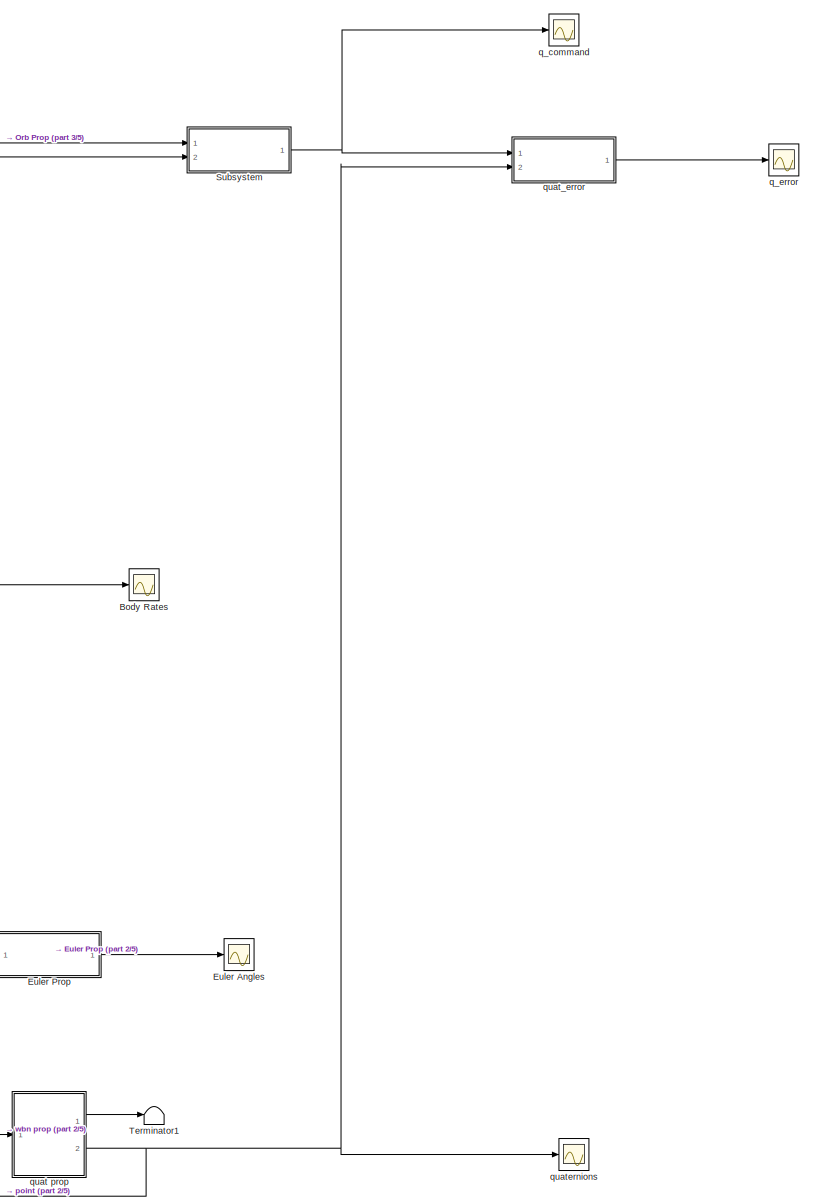
[diagram: root canvas - part 1/5, right side, full height]
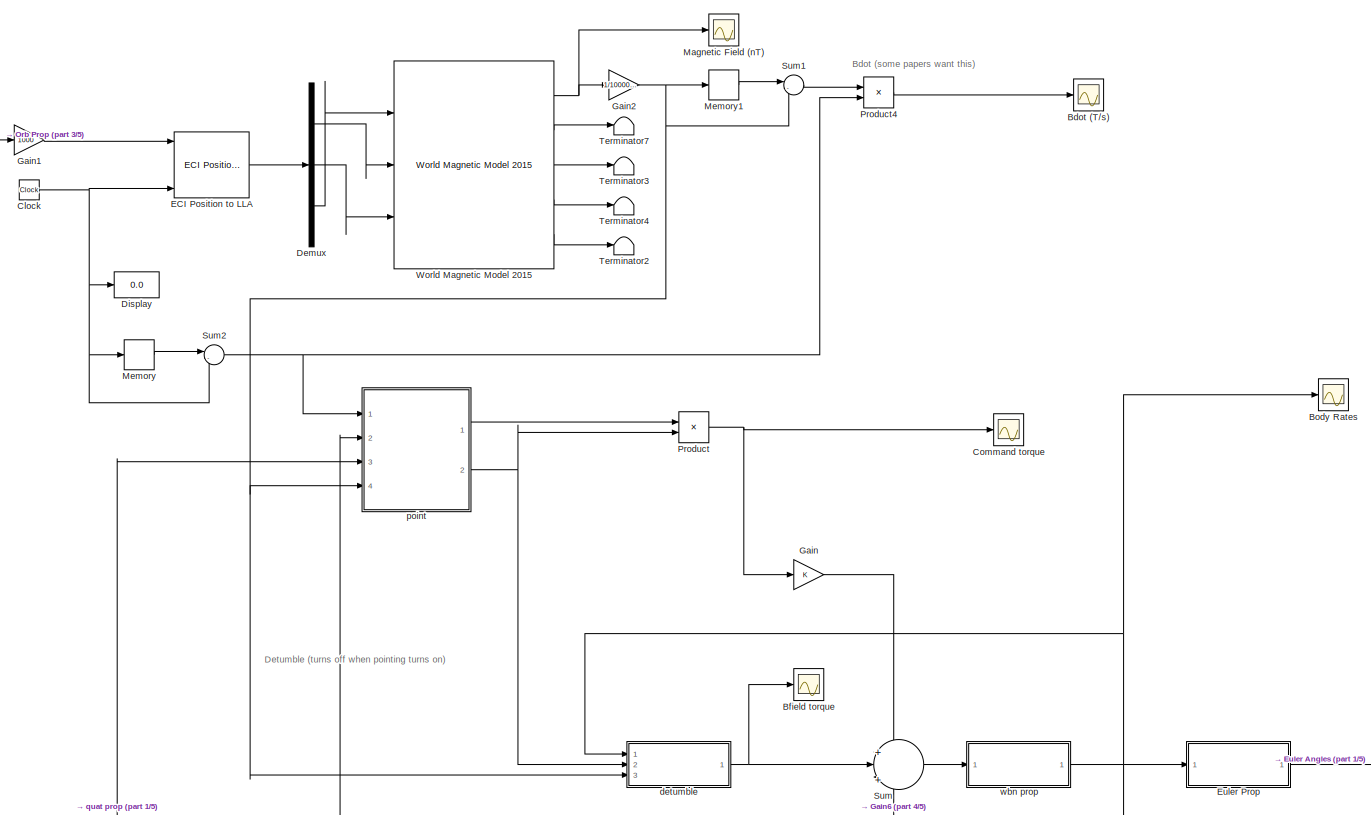
[diagram: root canvas - part 2/5, central region]
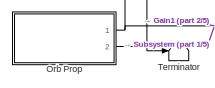
[diagram: root canvas - part 3/5, top left region]
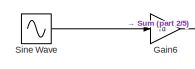
[diagram: root canvas - part 4/5, bottom center region]
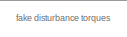
[diagram: root canvas - part 5/5, bottom center region]
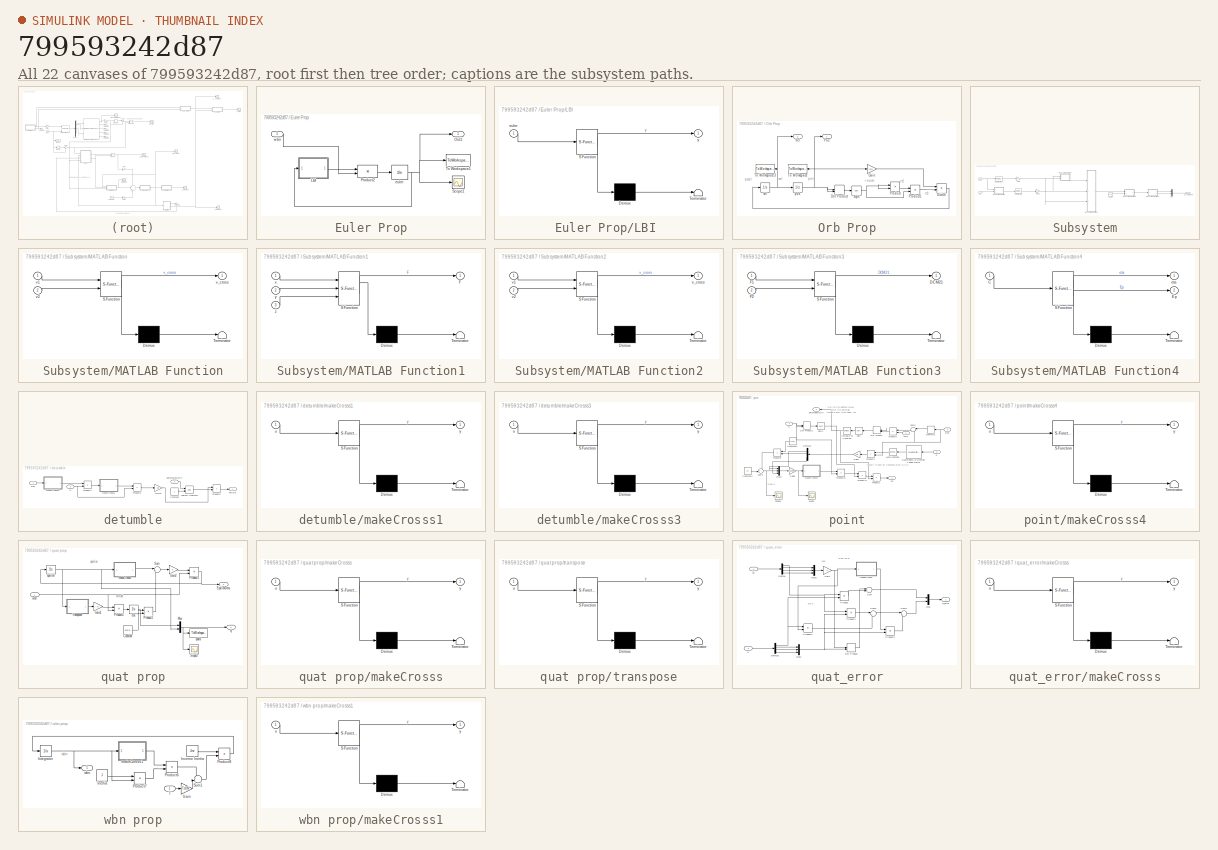
[diagram: thumbnail index - all 22 canvases of the model, root first then tree order]
MODEL slx_799593242d87
KIND model
CONFIG AbsTol = auto
CONFIG FixedStep = auto
CONFIG MaxStep = auto
CONFIG MinStep = auto
CONFIG RelTol = 1e-3
CONFIG SampleTimeConstraint = Unconstrained
CONFIG Solver = ode45
CONFIG SolverMode = Auto
CONFIG SolverName = ode45
CONFIG StartTime = 0.01
CONFIG StopTime = tprop
BLOCK [Scope] Bdot (T//s)
  Floating = off
  LimitDataPoints = off
  NumInputPorts = 1
  Ports = [1]
  SaveName = Bdot
  SaveToWorkspace = on
  ShowLegends = on
  YMax = 0.0045
  YMin = -0.002
BLOCK [Scope] Bfield torque
  Floating = off
  LimitDataPoints = off
  NumInputPorts = 1
  Ports = [1]
  SaveName = BfieldTorq
  SaveToWorkspace = on
  YMax = 0.000058
  YMin = -0.000028
BLOCK [Scope] Body Rates
  Floating = off
  LimitDataPoints = off
  NumInputPorts = 1
  Ports = [1]
  SaveName = wbn_sim
  SaveToWorkspace = on
  YMax = 8e+07
  YMin = -6e+07
  ZoomMode = xonly
BLOCK [Clock] Clock
BLOCK [Scope] Command torque
  DataFormat = StructureWithTime
  Floating = off
  LimitDataPoints = off
  NumInputPorts = 1
  Ports = [1]
  SampleInput = on
  SaveName = ScopeData1
  YMax = 8e+07
  YMin = -6e+07
BLOCK [Demux] Demux
  DisplayOption = bar
  Outputs = 3
  Ports = [1, 3]
BLOCK [Display] Display
  Decimation = 1
  Ports = [1]
BLOCK [Reference] ECI Position to LLA  REF=aerolibtransform2/ECI Position to LLA
  AttributesFormatString = %<red>
  Ports = [6, 1]
  SourceBlock = aerolibtransform2/ECI Position to LLA
  SourceType = ECItoLLA
  day = 2
  deltaT = Sec
  earthmodel = WGS84
  eqradius = 6378137
  errorflag = Error
  eunits = Metric (MKS)
  extraparamflag = on
  flat = 1/298.257223563
  hour = 0
  min = 0
  month = December
  red = IAU-2000/2006
  sec = 0
  year = 2015
BLOCK [Scope] Euler Angles
  Floating = off
  LegendLocations = 0.90106     0.89277    0.076098    0.060024
  LimitDataPoints = off
  NumInputPorts = 1
  Ports = [1]
  SaveName = Euler
  SaveToWorkspace = on
  ShowLegends = on
  YMax = 20.09042
  YMin = -79.20821
BLOCK [SubSystem] Euler Prop
  Ports = [1, 1]
  RequestExecContextInheritance = off
  TreatAsAtomicUnit = on
BLOCK [SubSystem] Euler Prop/LBI 
  ErrorFcn = Stateflow.Translate.translate
  PermitHierarchicalResolution = ExplicitOnly
  Ports = [1, 1]
  RequestExecContextInheritance = off
  SFBlockType = MATLAB Function
  TreatAsAtomicUnit = on
BLOCK [Demux] Euler Prop/LBI / Demux 
  Outputs = 1
  Ports = [1, 1]
BLOCK [S-Function] Euler Prop/LBI / SFunction 
  EnableBusSupport = on
  FunctionName = sf_sfun
  PortCounts = [1 2]
  Ports = [1, 2]
  Tag = Stateflow S-Function BDot42015a 9
BLOCK [Terminator] Euler Prop/LBI / Terminator 
BLOCK [Inport] Euler Prop/LBI /euler
  IconDisplay = Port number
BLOCK [Outport] Euler Prop/LBI /y
  IconDisplay = Port number
BLOCK [Outport] Euler Prop/Out1
  IconDisplay = Port number
BLOCK [Product] Euler Prop/Product2
  InputSameDT = off
  Multiplication = Matrix(*)
  OutDataTypeStr = Inherit: Inherit via internal rule
  Ports = [2, 1]
  RndMeth = Floor
  SaturateOnIntegerOverflow = off
BLOCK [Scope] Euler Prop/Scope1
  Floating = off
  NumInputPorts = 1
  Ports = [1]
  SaveName = ScopeData5
  YMax = 10
  YMin = -10
BLOCK [ToWorkspace] Euler Prop/To Workspace1
  FixptAsFi = on
  MaxDataPoints = inf
  Ports = [1]
  SampleTime = -1
  Save2DSignal = 3-D array (concatenate along third dimension)
  SaveFormat = Timeseries
  VariableName = euler
BLOCK [Integrator] Euler Prop/euler
  InitialCondition = euler0
  Ports = [1, 1]
BLOCK [Inport] Euler Prop/wbn
  IconDisplay = Port number
BLOCK [Gain] Gain
  OutDataTypeStr = Inherit: Inherit via internal rule
  ParamDataTypeStr = Inherit: Inherit via internal rule
  SaturateOnIntegerOverflow = off
BLOCK [Gain] Gain1
  Gain = 1000
  OutDataTypeStr = Inherit: Inherit via internal rule
  ParamDataTypeStr = Inherit: Inherit via internal rule
  SaturateOnIntegerOverflow = off
BLOCK [Gain] Gain2
  Gain = 1/1000000000
  OutDataTypeStr = Inherit: Inherit via internal rule
  ParamDataTypeStr = Inherit: Inherit via internal rule
  SaturateOnIntegerOverflow = off
BLOCK [Gain] Gain6
  Gain = Td
  OutDataTypeStr = Inherit: Inherit via internal rule
  ParamDataTypeStr = Inherit: Inherit via internal rule
  SaturateOnIntegerOverflow = off
BLOCK [Scope] Magnetic Field (nT)
  Floating = off
  LimitDataPoints = off
  NumInputPorts = 1
  Ports = [1]
  SaveName = MagField
  SaveToWorkspace = on
  ShowLegends = on
  YMax = 40000
  YMin = -30000
BLOCK [Memory] Memory
  InheritSampleTime = on
  X0 = .0999999
BLOCK [Memory] Memory1
  InheritSampleTime = on
  X0 = [2.1e-9;-5.8e-9;1e-9]
BLOCK [SubSystem] Orb Prop
  Ports = [0, 2]
  RequestExecContextInheritance = off
BLOCK [Product] Orb Prop/Divide
  InputSameDT = off
  Inputs = */
  OutDataTypeStr = Inherit: Inherit via internal rule
  Ports = [2, 1]
  RndMeth = Floor
  SaturateOnIntegerOverflow = off
BLOCK [DotProduct] Orb Prop/Dot Product
  OutDataTypeStr = Inherit: Inherit via internal rule
BLOCK [Gain] Orb Prop/Gain
  Gain = -mu
  OutDataTypeStr = Inherit: Inherit via internal rule
  ParamDataTypeStr = Inherit: Inherit via internal rule
  SaturateOnIntegerOverflow = off
BLOCK [Outport] Orb Prop/Pos
  IconDisplay = Port number
BLOCK [Product] Orb Prop/Product
  InputSameDT = off
  OutDataTypeStr = Inherit: Inherit via internal rule
  Ports = [2, 1]
  RndMeth = Floor
  SaturateOnIntegerOverflow = off
BLOCK [Product] Orb Prop/Product1
  InputSameDT = off
  OutDataTypeStr = Inherit: Inherit via internal rule
  Ports = [2, 1]
  RndMeth = Floor
  SaturateOnIntegerOverflow = off
BLOCK [Sqrt] Orb Prop/Sqrt
BLOCK [ToWorkspace] Orb Prop/To Workspace
  FixptAsFi = on
  MaxDataPoints = inf
  Ports = [1]
  SampleTime = -1
  Save2DSignal = 3-D array (concatenate along third dimension)
  SaveFormat = Timeseries
  VariableName = pos
BLOCK [ToWorkspace] Orb Prop/To Workspace3
  FixptAsFi = on
  MaxDataPoints = inf
  Ports = [1]
  SampleTime = -1
  Save2DSignal = 3-D array (concatenate along third dimension)
  SaveFormat = Timeseries
  VariableName = vel
BLOCK [Outport] Orb Prop/Vel
  IconDisplay = Port number
  Port = 2
BLOCK [Integrator] Orb Prop/pos
  InitialCondition = rvect
  Ports = [1, 1]
BLOCK [Integrator] Orb Prop/vel
  InitialCondition = vvect
  Ports = [1, 1]
BLOCK [Product] Product
  InputSameDT = off
  OutDataTypeStr = Inherit: Inherit via internal rule
  Ports = [2, 1]
  RndMeth = Floor
  SaturateOnIntegerOverflow = off
BLOCK [Product] Product4
  InputSameDT = off
  Inputs = */
  OutDataTypeStr = Inherit: Inherit via internal rule
  Ports = [2, 1]
  RndMeth = Floor
  SaturateOnIntegerOverflow = off
BLOCK [Sin] Sine Wave
  Amplitude = 1e-8
  Frequency = 100/T
  Ports = [0, 1]
  SampleTime = 0
BLOCK [SubSystem] Subsystem
  Ports = [2, 1]
  RequestExecContextInheritance = off
BLOCK [Gain] Subsystem/Gain
  Gain = -1
  OutDataTypeStr = Inherit: Inherit via internal rule
  ParamDataTypeStr = Inherit: Inherit via internal rule
  SaturateOnIntegerOverflow = off
BLOCK [Gain] Subsystem/Gain1
  Gain = -1
  OutDataTypeStr = Inherit: Inherit via internal rule
  ParamDataTypeStr = Inherit: Inherit via internal rule
  SaturateOnIntegerOverflow = off
BLOCK [Constant] Subsystem/Identity
  Value = [1 0 0; 0 1 0; 0 0 1]
  VectorParams1D = off
BLOCK [SubSystem] Subsystem/MATLAB Function
  ErrorFcn = Stateflow.Translate.translate
  PermitHierarchicalResolution = ExplicitOnly
  Ports = [2, 1]
  RequestExecContextInheritance = off
  SFBlockType = MATLAB Function
  TreatAsAtomicUnit = on
BLOCK [Demux] Subsystem/MATLAB Function/ Demux 
  Outputs = 1
  Ports = [1, 1]
BLOCK [S-Function] Subsystem/MATLAB Function/ SFunction 
  EnableBusSupport = on
  FunctionName = sf_sfun
  PortCounts = [2 2]
  Ports = [2, 2]
  Tag = Stateflow S-Function BDot42015a 5
BLOCK [Terminator] Subsystem/MATLAB Function/ Terminator 
BLOCK [Inport] Subsystem/MATLAB Function/v1
  IconDisplay = Port number
BLOCK [Inport] Subsystem/MATLAB Function/v2
  IconDisplay = Port number
  Port = 2
BLOCK [Outport] Subsystem/MATLAB Function/v_cross
  IconDisplay = Port number
BLOCK [SubSystem] Subsystem/MATLAB Function1
  ErrorFcn = Stateflow.Translate.translate
  PermitHierarchicalResolution = ExplicitOnly
  Ports = [3, 1]
  RequestExecContextInheritance = off
  SFBlockType = MATLAB Function
  TreatAsAtomicUnit = on
BLOCK [Demux] Subsystem/MATLAB Function1/ Demux 
  Outputs = 1
  Ports = [1, 1]
BLOCK [S-Function] Subsystem/MATLAB Function1/ SFunction 
  EnableBusSupport = on
  FunctionName = sf_sfun
  PortCounts = [3 2]
  Ports = [3, 2]
  Tag = Stateflow S-Function BDot42015a 10
BLOCK [Terminator] Subsystem/MATLAB Function1/ Terminator 
BLOCK [Outport] Subsystem/MATLAB Function1/F
  IconDisplay = Port number
BLOCK [Inport] Subsystem/MATLAB Function1/x
  IconDisplay = Port number
BLOCK [Inport] Subsystem/MATLAB Function1/y
  IconDisplay = Port number
  Port = 2
BLOCK [Inport] Subsystem/MATLAB Function1/z
  IconDisplay = Port number
  Port = 3
BLOCK [SubSystem] Subsystem/MATLAB Function2
  ErrorFcn = Stateflow.Translate.translate
  PermitHierarchicalResolution = ExplicitOnly
  Ports = [2, 1]
  RequestExecContextInheritance = off
  SFBlockType = MATLAB Function
  TreatAsAtomicUnit = on
BLOCK [Demux] Subsystem/MATLAB Function2/ Demux 
  Outputs = 1
  Ports = [1, 1]
BLOCK [S-Function] Subsystem/MATLAB Function2/ SFunction 
  EnableBusSupport = on
  FunctionName = sf_sfun
  PortCounts = [2 2]
  Ports = [2, 2]
  Tag = Stateflow S-Function BDot42015a 11
BLOCK [Terminator] Subsystem/MATLAB Function2/ Terminator 
BLOCK [Inport] Subsystem/MATLAB Function2/v1
  IconDisplay = Port number
BLOCK [Inport] Subsystem/MATLAB Function2/v2
  IconDisplay = Port number
  Port = 2
BLOCK [Outport] Subsystem/MATLAB Function2/v_cross
  IconDisplay = Port number
BLOCK [SubSystem] Subsystem/MATLAB Function3
  ErrorFcn = Stateflow.Translate.translate
  PermitHierarchicalResolution = ExplicitOnly
  Ports = [2, 1]
  RequestExecContextInheritance = off
  SFBlockType = MATLAB Function
  TreatAsAtomicUnit = on
BLOCK [Demux] Subsystem/MATLAB Function3/ Demux 
  Outputs = 1
  Ports = [1, 1]
BLOCK [S-Function] Subsystem/MATLAB Function3/ SFunction 
  EnableBusSupport = on
  FunctionName = sf_sfun
  PortCounts = [2 2]
  Ports = [2, 2]
  Tag = Stateflow S-Function BDot42015a 12
BLOCK [Terminator] Subsystem/MATLAB Function3/ Terminator 
BLOCK [Outport] Subsystem/MATLAB Function3/DCM21
  IconDisplay = Port number
BLOCK [Inport] Subsystem/MATLAB Function3/F1
  IconDisplay = Port number
BLOCK [Inport] Subsystem/MATLAB Function3/F2
  IconDisplay = Port number
  Port = 2
BLOCK [SubSystem] Subsystem/MATLAB Function4
  ErrorFcn = Stateflow.Translate.translate
  PermitHierarchicalResolution = ExplicitOnly
  Ports = [1, 2]
  RequestExecContextInheritance = off
  SFBlockType = MATLAB Function
  TreatAsAtomicUnit = on
BLOCK [Demux] Subsystem/MATLAB Function4/ Demux 
  Outputs = 1
  Ports = [1, 1]
BLOCK [S-Function] Subsystem/MATLAB Function4/ SFunction 
  EnableBusSupport = on
  FunctionName = sf_sfun
  PortCounts = [1 3]
  Ports = [1, 3]
  Tag = Stateflow S-Function BDot42015a 13
BLOCK [Terminator] Subsystem/MATLAB Function4/ Terminator 
BLOCK [Inport] Subsystem/MATLAB Function4/C
  IconDisplay = Port number
BLOCK [Outport] Subsystem/MATLAB Function4/Ep
  IconDisplay = Port number
  Port = 2
BLOCK [Outport] Subsystem/MATLAB Function4/eta
  IconDisplay = Port number
BLOCK [Mux] Subsystem/Mux
  DisplayOption = bar
  Inputs = 2
  Ports = [2, 1]
BLOCK [Reference] Subsystem/Normalization  REF=dspmathops/Normalization
  Bias = 1e-10
  ColComp = off
  Dimension = 1
  LockScale = off
  NormOver = Each column
  NormType = 2-norm
  Ports = [1, 1]
  SourceBlock = dspmathops/Normalization
  SourceType = Normalization
  accumDataTypeStr = Inherit: Same as product output
  accumFracLength = 30
  accumLastDataTypeStr = Inherit: Same as product output
  accumMode = Same as product output
  accumWordLength = 32
  additionalParams = off
  allowOverrides = on
  outputDataTypeStr = Inherit: Same as product output
  outputFracLength = 32
  outputLastDataTypeStr = Inherit: Same as product output
  outputMax = []
  outputMin = []
  outputMode = Same as product output
  outputWordLength = 32
  overflowMode = off
  prodOutputDataTypeStr = Inherit: Same as input
  prodOutputFracLength = 32
  prodOutputLastDataTypeStr = Inherit: Same as input
  prodOutputMode = Same as input
  prodOutputWordLength = 32
  roundingMode = Floor
BLOCK [Reference] Subsystem/Normalization1  REF=dspmathops/Normalization
  Bias = 1e-10
  ColComp = off
  Dimension = 1
  LockScale = off
  NormOver = Each column
  NormType = 2-norm
  Ports = [1, 1]
  SourceBlock = dspmathops/Normalization
  SourceType = Normalization
  accumDataTypeStr = Inherit: Same as product output
  accumFracLength = 30
  accumLastDataTypeStr = Inherit: Same as product output
  accumMode = Same as product output
  accumWordLength = 32
  additionalParams = off
  allowOverrides = on
  outputDataTypeStr = Inherit: Same as product output
  outputFracLength = 32
  outputLastDataTypeStr = Inherit: Same as product output
  outputMax = []
  outputMin = []
  outputMode = Same as product output
  outputWordLength = 32
  overflowMode = off
  prodOutputDataTypeStr = Inherit: Same as input
  prodOutputFracLength = 32
  prodOutputLastDataTypeStr = Inherit: Same as input
  prodOutputMode = Same as input
  prodOutputWordLength = 32
  roundingMode = Floor
BLOCK [Inport] Subsystem/Pos
  IconDisplay = Port number
BLOCK [Inport] Subsystem/Vel
  IconDisplay = Port number
  Port = 2
BLOCK [Outport] Subsystem/q_command
  IconDisplay = Port number
BLOCK [Sum] Sum
  IconShape = round
  InputSameDT = off
  Inputs = +||+||+
  OutDataTypeStr = Inherit: Inherit via internal rule
  Ports = [3, 1]
  SaturateOnIntegerOverflow = off
BLOCK [Sum] Sum1
  IconShape = round
  InputSameDT = off
  Inputs = |-+
  OutDataTypeStr = Inherit: Inherit via internal rule
  Ports = [2, 1]
  SaturateOnIntegerOverflow = off
BLOCK [Sum] Sum2
  IconShape = round
  InputSameDT = off
  Inputs = |-+
  OutDataTypeStr = Inherit: Inherit via internal rule
  Ports = [2, 1]
  SaturateOnIntegerOverflow = off
BLOCK [Terminator] Terminator
BLOCK [Terminator] Terminator1
BLOCK [Terminator] Terminator2
BLOCK [Terminator] Terminator3
BLOCK [Terminator] Terminator4
BLOCK [Terminator] Terminator7
BLOCK [Reference] World Magnetic Model 2015  REF=aerolibgravity2/World Magnetic Model 2015
  Ports = [3, 5]
  SourceBlock = aerolibgravity2/World Magnetic Model 2015
  SourceType = WorldMagneticModel2015
  action = Error
  day = 2
  dec_out = on
  h_out = on
  inc_out = on
  month = December
  ti_out = on
  time_in = off
  units = Metric (MKS)
  year = 2015
BLOCK [SubSystem] detumble
  Ports = [3, 1]
  RequestExecContextInheritance = off
BLOCK [Constant] detumble/Constant
BLOCK [Gain] detumble/Gain3
  Gain = -kd
  Multiplication = Matrix(K*u)
  OutDataTypeStr = Inherit: Inherit via internal rule
  ParamDataTypeStr = Inherit: Inherit via internal rule
  SaturateOnIntegerOverflow = off
BLOCK [Logic] detumble/Logical Operator
  AllPortsSameDT = off
  Operator = XOR
  OutDataTypeStr = boolean
  Ports = [2, 1]
BLOCK [Product] detumble/Product1
  InputSameDT = off
  Multiplication = Matrix(*)
  OutDataTypeStr = Inherit: Inherit via internal rule
  Ports = [2, 1]
  RndMeth = Floor
  SaturateOnIntegerOverflow = off
BLOCK [Product] detumble/Product2
  InputSameDT = off
  Multiplication = Matrix(*)
  OutDataTypeStr = Inherit: Inherit via internal rule
  Ports = [2, 1]
  RndMeth = Floor
  SaturateOnIntegerOverflow = off
BLOCK [Product] detumble/Product6
  InputSameDT = off
  OutDataTypeStr = Inherit: Inherit via internal rule
  Ports = [2, 1]
  RndMeth = Floor
  SaturateOnIntegerOverflow = off
BLOCK [Outport] detumble/Tbfield
  IconDisplay = Port number
BLOCK [Inport] detumble/b
  IconDisplay = Port number
  Port = 3
BLOCK [Inport] detumble/detumbleOnOff
  IconDisplay = Port number
  Port = 2
BLOCK [SubSystem] detumble/makeCrosss1
  ErrorFcn = Stateflow.Translate.translate
  PermitHierarchicalResolution = ExplicitOnly
  Ports = [1, 1]
  RequestExecContextInheritance = off
  SFBlockType = MATLAB Function
  TreatAsAtomicUnit = on
BLOCK [Demux] detumble/makeCrosss1/ Demux 
  Outputs = 1
  Ports = [1, 1]
BLOCK [S-Function] detumble/makeCrosss1/ SFunction 
  EnableBusSupport = on
  FunctionName = sf_sfun
  PortCounts = [1 2]
  Ports = [1, 2]
  Tag = Stateflow S-Function BDot42015a 1
BLOCK [Terminator] detumble/makeCrosss1/ Terminator 
BLOCK [Inport] detumble/makeCrosss1/u
  IconDisplay = Port number
BLOCK [Outport] detumble/makeCrosss1/y
  IconDisplay = Port number
BLOCK [SubSystem] detumble/makeCrosss3
  ErrorFcn = Stateflow.Translate.translate
  PermitHierarchicalResolution = ExplicitOnly
  Ports = [1, 1]
  RequestExecContextInheritance = off
  SFBlockType = MATLAB Function
  TreatAsAtomicUnit = on
BLOCK [Demux] detumble/makeCrosss3/ Demux 
  Outputs = 1
  Ports = [1, 1]
BLOCK [S-Function] detumble/makeCrosss3/ SFunction 
  EnableBusSupport = on
  FunctionName = sf_sfun
  PortCounts = [1 2]
  Ports = [1, 2]
  Tag = Stateflow S-Function BDot42015a 8
BLOCK [Terminator] detumble/makeCrosss3/ Terminator 
BLOCK [Inport] detumble/makeCrosss3/u
  IconDisplay = Port number
BLOCK [Outport] detumble/makeCrosss3/y
  IconDisplay = Port number
BLOCK [Inport] detumble/wbn
  IconDisplay = Port number
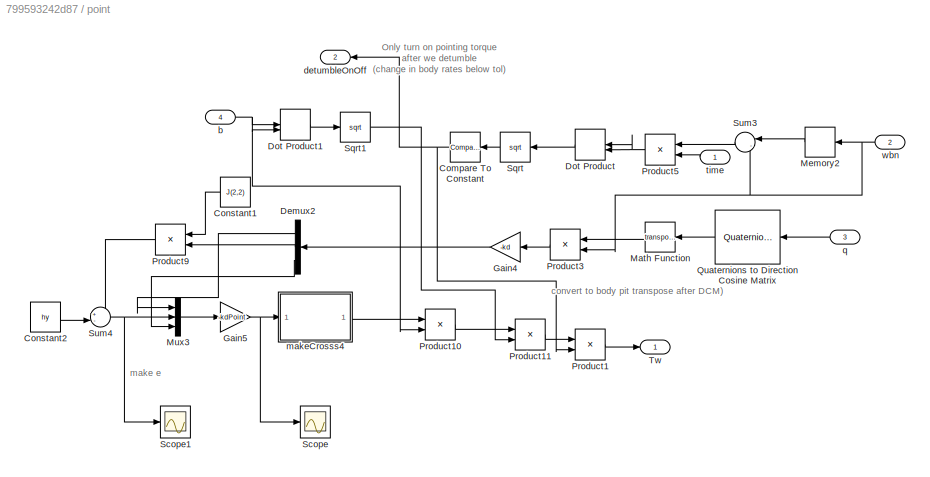
BLOCK [SubSystem] point
  Ports = [4, 2]
  RequestExecContextInheritance = off
BLOCK [Reference] point/Compare To Constant  REF=simulink/Logic and Bit
Operations/Compare
To Constant
  OutDataTypeStr = boolean
  Ports = [1, 1]
  SourceBlock = simulink/Logic and Bit\nOperations/Compare\nTo Constant
  SourceType = Compare To Constant
  ZeroCross = off
  const = tol
  relop = <
BLOCK [Constant] point/Constant1
  Value = J(2,2)
BLOCK [Constant] point/Constant2
  Value = hy
BLOCK [Demux] point/Demux2
  DisplayOption = bar
  Outputs = 3
  Ports = [1, 3]
BLOCK [DotProduct] point/Dot Product
  OutDataTypeStr = Inherit: Inherit via internal rule
BLOCK [DotProduct] point/Dot Product1
  OutDataTypeStr = Inherit: Inherit via internal rule
BLOCK [Gain] point/Gain4
  Gain = -kd
  Multiplication = Matrix(K*u)
  OutDataTypeStr = Inherit: Inherit via internal rule
  ParamDataTypeStr = Inherit: Inherit via internal rule
  SaturateOnIntegerOverflow = off
BLOCK [Gain] point/Gain5
  Gain = -kdPoint
  Multiplication = Matrix(K*u)
  OutDataTypeStr = Inherit: Inherit via internal rule
  ParamDataTypeStr = Inherit: Inherit via internal rule
  SaturateOnIntegerOverflow = off
BLOCK [Math] point/Math Function
  Operator = transpose
  Ports = [1, 1]
BLOCK [Memory] point/Memory2
  InheritSampleTime = on
  X0 = wbn0+[.001;.001;.001]
BLOCK [Mux] point/Mux3
  DisplayOption = bar
  Inputs = 3
  Ports = [3, 1]
BLOCK [Product] point/Product1
  InputSameDT = off
  Inputs = **
  OutDataTypeStr = Inherit: Inherit via internal rule
  Ports = [2, 1]
  RndMeth = Floor
  SaturateOnIntegerOverflow = off
BLOCK [Product] point/Product10
  InputSameDT = off
  Multiplication = Matrix(*)
  OutDataTypeStr = Inherit: Inherit via internal rule
  Ports = [2, 1]
  RndMeth = Floor
  SaturateOnIntegerOverflow = off
BLOCK [Product] point/Product11
  InputSameDT = off
  Inputs = */
  OutDataTypeStr = Inherit: Inherit via internal rule
  Ports = [2, 1]
  RndMeth = Floor
  SaturateOnIntegerOverflow = off
BLOCK [Product] point/Product3
  InputSameDT = off
  Multiplication = Matrix(*)
  OutDataTypeStr = Inherit: Inherit via internal rule
  Ports = [2, 1]
  RndMeth = Floor
  SaturateOnIntegerOverflow = off
BLOCK [Product] point/Product5
  InputSameDT = off
  Inputs = */
  OutDataTypeStr = Inherit: Inherit via internal rule
  Ports = [2, 1]
  RndMeth = Floor
  SaturateOnIntegerOverflow = off
BLOCK [Product] point/Product9
  InputSameDT = off
  OutDataTypeStr = Inherit: Inherit via internal rule
  Ports = [2, 1]
  RndMeth = Floor
  SaturateOnIntegerOverflow = off
BLOCK [Reference] point/Quaternions to Direction Cosine Matrix  REF=aerolibtransform2/Quaternions to 
Direction Cosine Matrix
  Ports = [1, 1]
  SourceBlock = aerolibtransform2/Quaternions to \nDirection Cosine Matrix
  SourceType = Quaternion2DCM
BLOCK [Scope] point/Scope
  Floating = off
  NumInputPorts = 1
  Ports = [1]
  SaveName = ScopeData1
  YMax = 10
  YMin = -10
BLOCK [Scope] point/Scope1
  Floating = off
  NumInputPorts = 1
  Ports = [1]
  SaveName = ScopeData2
  YMax = 10
  YMin = -10
BLOCK [Sqrt] point/Sqrt
BLOCK [Sqrt] point/Sqrt1
BLOCK [Sum] point/Sum3
  IconShape = round
  InputSameDT = off
  Inputs = |-+
  OutDataTypeStr = Inherit: Inherit via internal rule
  Ports = [2, 1]
  SaturateOnIntegerOverflow = off
BLOCK [Sum] point/Sum4
  IconShape = round
  InputSameDT = off
  Inputs = +-|
  OutDataTypeStr = Inherit: Inherit via internal rule
  Ports = [2, 1]
  SaturateOnIntegerOverflow = off
BLOCK [Outport] point/Tw
  IconDisplay = Port number
BLOCK [Inport] point/b
  IconDisplay = Port number
  Port = 4
BLOCK [Outport] point/detumbleOnOff
  IconDisplay = Port number
  Port = 2
BLOCK [SubSystem] point/makeCrosss4
  ErrorFcn = Stateflow.Translate.translate
  PermitHierarchicalResolution = ExplicitOnly
  Ports = [1, 1]
  RequestExecContextInheritance = off
  SFBlockType = MATLAB Function
  TreatAsAtomicUnit = on
BLOCK [Demux] point/makeCrosss4/ Demux 
  Outputs = 1
  Ports = [1, 1]
BLOCK [S-Function] point/makeCrosss4/ SFunction 
  EnableBusSupport = on
  FunctionName = sf_sfun
  PortCounts = [1 2]
  Ports = [1, 2]
  Tag = Stateflow S-Function BDot42015a 7
BLOCK [Terminator] point/makeCrosss4/ Terminator 
BLOCK [Inport] point/makeCrosss4/u
  IconDisplay = Port number
BLOCK [Outport] point/makeCrosss4/y
  IconDisplay = Port number
BLOCK [Inport] point/q
  IconDisplay = Port number
  Port = 3
BLOCK [Inport] point/time
  IconDisplay = Port number
BLOCK [Inport] point/wbn
  IconDisplay = Port number
  Port = 2
BLOCK [Scope] q_command
  Floating = off
  LimitDataPoints = off
  NumInputPorts = 1
  Ports = [1]
  SaveName = q_command
  SaveToWorkspace = on
  ShowLegends = on
  YMax = 0.0045
  YMin = -0.002
BLOCK [Scope] q_error
  Floating = off
  LimitDataPoints = off
  NumInputPorts = 1
  Ports = [1]
  SaveName = q_error
  SaveToWorkspace = on
BLOCK [SubSystem] quat prop
  Ports = [1, 2]
  RequestExecContextInheritance = off
BLOCK [Constant] quat prop/Constant
  Value = eye(3)
BLOCK [Outport] quat prop/EpsilonDots
  IconDisplay = Port number
BLOCK [Gain] quat prop/Gain1
  Gain = -.5
  OutDataTypeStr = Inherit: Inherit via internal rule
  ParamDataTypeStr = Inherit: Inherit via internal rule
  SaturateOnIntegerOverflow = off
BLOCK [Gain] quat prop/Gain2
  Gain = .5
  OutDataTypeStr = Inherit: Inherit via internal rule
  ParamDataTypeStr = Inherit: Inherit via internal rule
  SaturateOnIntegerOverflow = off
BLOCK [Mux] quat prop/Mux
  DisplayOption = bar
  Inputs = 2
  Ports = [2, 1]
BLOCK [Product] quat prop/Product3
  InputSameDT = off
  Multiplication = Matrix(*)
  OutDataTypeStr = Inherit: Inherit via internal rule
  Ports = [2, 1]
  RndMeth = Floor
  SaturateOnIntegerOverflow = off
BLOCK [Product] quat prop/Product4
  InputSameDT = off
  Multiplication = Matrix(*)
  OutDataTypeStr = Inherit: Inherit via internal rule
  Ports = [2, 1]
  RndMeth = Floor
  SaturateOnIntegerOverflow = off
BLOCK [Product] quat prop/Product5
  InputSameDT = off
  OutDataTypeStr = Inherit: Inherit via internal rule
  Ports = [2, 1]
  RndMeth = Floor
  SaturateOnIntegerOverflow = off
BLOCK [Scope] quat prop/Scope2
  Floating = off
  NumInputPorts = 1
  Ports = [1]
  SaveName = ScopeData1
  YMax = 10
  YMin = -10
BLOCK [Sum] quat prop/Sum
  IconShape = round
  InputSameDT = off
  Inputs = |++
  OutDataTypeStr = Inherit: Inherit via internal rule
  Ports = [2, 1]
  SaturateOnIntegerOverflow = off
BLOCK [Integrator] quat prop/epsilon
  InitialCondition = epsilon0
  Ports = [1, 1]
BLOCK [Integrator] quat prop/eta
  InitialCondition = eta0
  Ports = [1, 1]
BLOCK [SubSystem] quat prop/makeCrosss
  ErrorFcn = Stateflow.Translate.translate
  PermitHierarchicalResolution = ExplicitOnly
  Ports = [1, 1]
  RequestExecContextInheritance = off
  SFBlockType = MATLAB Function
  TreatAsAtomicUnit = on
BLOCK [Demux] quat prop/makeCrosss/ Demux 
  Outputs = 1
  Ports = [1, 1]
BLOCK [S-Function] quat prop/makeCrosss/ SFunction 
  EnableBusSupport = on
  FunctionName = sf_sfun
  PortCounts = [1 2]
  Ports = [1, 2]
  Tag = Stateflow S-Function BDot42015a 3
BLOCK [Terminator] quat prop/makeCrosss/ Terminator 
BLOCK [Inport] quat prop/makeCrosss/u
  IconDisplay = Port number
BLOCK [Outport] quat prop/makeCrosss/y
  IconDisplay = Port number
BLOCK [Outport] quat prop/q
  IconDisplay = Port number
  Port = 2
BLOCK [ToWorkspace] quat prop/quats
  FixptAsFi = on
  MaxDataPoints = inf
  Ports = [1]
  SampleTime = -1
  Save2DSignal = 3-D array (concatenate along third dimension)
  SaveFormat = Timeseries
  VariableName = quat
BLOCK [SubSystem] quat prop/transpose
  ErrorFcn = Stateflow.Translate.translate
  PermitHierarchicalResolution = ExplicitOnly
  Ports = [1, 1]
  RequestExecContextInheritance = off
  SFBlockType = MATLAB Function
  TreatAsAtomicUnit = on
BLOCK [Demux] quat prop/transpose/ Demux 
  Outputs = 1
  Ports = [1, 1]
BLOCK [S-Function] quat prop/transpose/ SFunction 
  EnableBusSupport = on
  FunctionName = sf_sfun
  PortCounts = [1 2]
  Ports = [1, 2]
  Tag = Stateflow S-Function BDot42015a 6
BLOCK [Terminator] quat prop/transpose/ Terminator 
BLOCK [Inport] quat prop/transpose/u
  IconDisplay = Port number
BLOCK [Outport] quat prop/transpose/y
  IconDisplay = Port number
BLOCK [Inport] quat prop/wbn
  IconDisplay = Port number
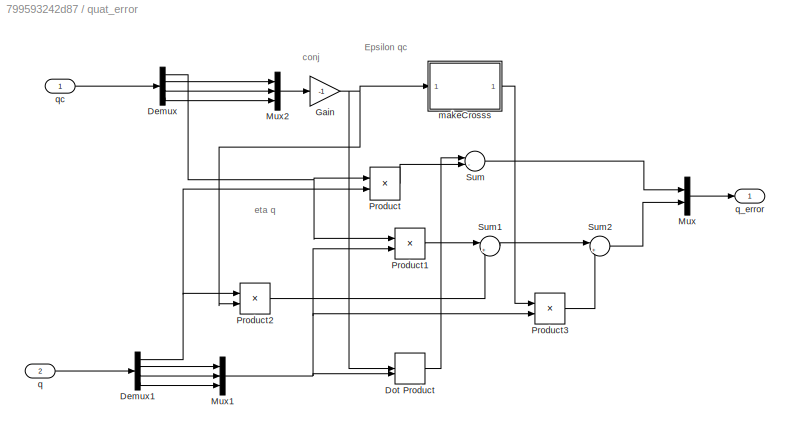
BLOCK [SubSystem] quat_error
  Ports = [2, 1]
  RequestExecContextInheritance = off
BLOCK [Demux] quat_error/Demux
  DisplayOption = bar
  Ports = [1, 4]
BLOCK [Demux] quat_error/Demux1
  DisplayOption = bar
  Ports = [1, 4]
BLOCK [DotProduct] quat_error/Dot Product
  OutDataTypeStr = Inherit: Inherit via internal rule
BLOCK [Gain] quat_error/Gain
  Gain = -1
  OutDataTypeStr = Inherit: Inherit via internal rule
  ParamDataTypeStr = Inherit: Inherit via internal rule
  SaturateOnIntegerOverflow = off
BLOCK [Mux] quat_error/Mux
  DisplayOption = bar
  Inputs = 2
  Ports = [2, 1]
BLOCK [Mux] quat_error/Mux1
  DisplayOption = bar
  Inputs = 3
  Ports = [3, 1]
BLOCK [Mux] quat_error/Mux2
  DisplayOption = bar
  Inputs = 3
  Ports = [3, 1]
BLOCK [Product] quat_error/Product
  InputSameDT = off
  OutDataTypeStr = Inherit: Inherit via internal rule
  Ports = [2, 1]
  RndMeth = Floor
  SaturateOnIntegerOverflow = off
BLOCK [Product] quat_error/Product1
  InputSameDT = off
  OutDataTypeStr = Inherit: Inherit via internal rule
  Ports = [2, 1]
  RndMeth = Floor
  SaturateOnIntegerOverflow = off
BLOCK [Product] quat_error/Product2
  InputSameDT = off
  OutDataTypeStr = Inherit: Inherit via internal rule
  Ports = [2, 1]
  RndMeth = Floor
  SaturateOnIntegerOverflow = off
BLOCK [Product] quat_error/Product3
  InputSameDT = off
  Multiplication = Matrix(*)
  OutDataTypeStr = Inherit: Inherit via internal rule
  Ports = [2, 1]
  RndMeth = Floor
  SaturateOnIntegerOverflow = off
BLOCK [Sum] quat_error/Sum
  IconShape = round
  InputSameDT = off
  Inputs = |-+
  OutDataTypeStr = Inherit: Inherit via internal rule
  Ports = [2, 1]
  SaturateOnIntegerOverflow = off
BLOCK [Sum] quat_error/Sum1
  IconShape = round
  InputSameDT = off
  Inputs = |++
  OutDataTypeStr = Inherit: Inherit via internal rule
  Ports = [2, 1]
  SaturateOnIntegerOverflow = off
BLOCK [Sum] quat_error/Sum2
  IconShape = round
  InputSameDT = off
  Inputs = |++
  OutDataTypeStr = Inherit: Inherit via internal rule
  Ports = [2, 1]
  SaturateOnIntegerOverflow = off
BLOCK [SubSystem] quat_error/makeCrosss
  ErrorFcn = Stateflow.Translate.translate
  PermitHierarchicalResolution = ExplicitOnly
  Ports = [1, 1]
  RequestExecContextInheritance = off
  SFBlockType = MATLAB Function
  TreatAsAtomicUnit = on
BLOCK [Demux] quat_error/makeCrosss/ Demux 
  Outputs = 1
  Ports = [1, 1]
BLOCK [S-Function] quat_error/makeCrosss/ SFunction 
  EnableBusSupport = on
  FunctionName = sf_sfun
  PortCounts = [1 2]
  Ports = [1, 2]
  Tag = Stateflow S-Function BDot42015a 2
BLOCK [Terminator] quat_error/makeCrosss/ Terminator 
BLOCK [Inport] quat_error/makeCrosss/u
  IconDisplay = Port number
BLOCK [Outport] quat_error/makeCrosss/y
  IconDisplay = Port number
BLOCK [Inport] quat_error/q
  IconDisplay = Port number
  Port = 2
BLOCK [Outport] quat_error/q_error
  IconDisplay = Port number
BLOCK [Inport] quat_error/qc
  IconDisplay = Port number
BLOCK [Scope] quaternions
  Floating = off
  LimitDataPoints = off
  NumInputPorts = 1
  Ports = [1]
  SaveName = quaternions
  SaveToWorkspace = on
  ShowLegends = on
  YMax = 1.22156
  YMin = -1.22706
BLOCK [SubSystem] wbn prop
  Ports = [1, 1]
  RequestExecContextInheritance = off
BLOCK [Gain] wbn prop/Gain
  Gain = TcON
  OutDataTypeStr = Inherit: Inherit via internal rule
  ParamDataTypeStr = Inherit: Inherit via internal rule
  SaturateOnIntegerOverflow = off
BLOCK [Constant] wbn prop/Inertia
  Value = J
BLOCK [Integrator] wbn prop/Integrator
  InitialCondition = wbn0
  Ports = [1, 1]
BLOCK [Constant] wbn prop/Inverse Inertia
  Value = Jinv
BLOCK [Product] wbn prop/Product6
  InputSameDT = off
  Multiplication = Matrix(*)
  OutDataTypeStr = Inherit: Inherit via internal rule
  Ports = [2, 1]
  RndMeth = Floor
  SaturateOnIntegerOverflow = off
BLOCK [Product] wbn prop/Product7
  InputSameDT = off
  Multiplication = Matrix(*)
  OutDataTypeStr = Inherit: Inherit via internal rule
  Ports = [2, 1]
  RndMeth = Floor
  SaturateOnIntegerOverflow = off
BLOCK [Product] wbn prop/Product8
  InputSameDT = off
  Multiplication = Matrix(*)
  OutDataTypeStr = Inherit: Inherit via internal rule
  Ports = [2, 1]
  RndMeth = Floor
  SaturateOnIntegerOverflow = off
BLOCK [Sum] wbn prop/Sum1
  IconShape = round
  InputSameDT = off
  Inputs = +-
  OutDataTypeStr = Inherit: Inherit via internal rule
  Ports = [2, 1]
  SaturateOnIntegerOverflow = off
BLOCK [Inport] wbn prop/T
  IconDisplay = Port number
BLOCK [SubSystem] wbn prop/makeCrosss1
  ErrorFcn = Stateflow.Translate.translate
  PermitHierarchicalResolution = ExplicitOnly
  Ports = [1, 1]
  RequestExecContextInheritance = off
  SFBlockType = MATLAB Function
  TreatAsAtomicUnit = on
BLOCK [Demux] wbn prop/makeCrosss1/ Demux 
  Outputs = 1
  Ports = [1, 1]
BLOCK [S-Function] wbn prop/makeCrosss1/ SFunction 
  EnableBusSupport = on
  FunctionName = sf_sfun
  PortCounts = [1 2]
  Ports = [1, 2]
  Tag = Stateflow S-Function BDot42015a 4
BLOCK [Terminator] wbn prop/makeCrosss1/ Terminator 
BLOCK [Inport] wbn prop/makeCrosss1/u
  IconDisplay = Port number
BLOCK [Outport] wbn prop/makeCrosss1/y
  IconDisplay = Port number
BLOCK [Outport] wbn prop/wbn
  IconDisplay = Port number
ANNOTATION (root): Detumble (turns off when pointing turns on)
ANNOTATION (root): Bdot (some papers want this)
ANNOTATION (root): fake disturbance torques
ANNOTATION Orb Prop: accel
ANNOTATION Orb Prop: pos
ANNOTATION Orb Prop: r norm
ANNOTATION Orb Prop: r^2
ANNOTATION Orb Prop: r^3
ANNOTATION Orb Prop: vel
ANNOTATION point: Only turn on pointing torque after we detumble (change in body rates below tol)
ANNOTATION point: convert to body pit transpose after DCM)
ANNOTATION point: make e
ANNOTATION quat prop: epsilon
ANNOTATION quat prop: eta dot
ANNOTATION quat_error: Epsilon qc
ANNOTATION quat_error: conj
ANNOTATION quat_error: eta q
ANNOTATION wbn prop: wbn
NET Clock:1 -> Display:1, ECI Position to LLA:6, Memory:1, Sum2:2
LINE Demux:1 -> World Magnetic Model 2015:2
LINE Demux:2 -> World Magnetic Model 2015:3
LINE Demux:3 -> World Magnetic Model 2015:1
LINE ECI Position to LLA:1 -> Demux:1
LINE Euler Prop/LBI :1 -> Euler Prop/Product2:1
LINE Euler Prop/Product2:1 -> Euler Prop/euler:1
NET Euler Prop/euler:1 -> Euler Prop/LBI :1, Euler Prop/Out1:1, Euler Prop/Scope1:1, Euler Prop/To Workspace1:1
LINE Euler Prop/wbn:1 -> Euler Prop/Product2:2
LINE Euler Prop:1 -> Euler Angles:1
LINE Gain1:1 -> ECI Position to LLA:1
NET Gain2:1 -> Memory1:1, Sum1:2, detumble:3, point:4
LINE Gain6:1 -> Sum:3
LINE Gain:1 -> Sum:1
LINE Memory1:1 -> Sum1:1
LINE Memory:1 -> Sum2:1
LINE Orb Prop/Divide:1 -> Orb Prop/vel:1
LINE Orb Prop/Dot Product:1 -> Orb Prop/Sqrt:1
LINE Orb Prop/Gain:1 -> Orb Prop/Divide:1
LINE Orb Prop/Product1:1 -> Orb Prop/Divide:2
LINE Orb Prop/Product:1 -> Orb Prop/Product1:1
NET Orb Prop/Sqrt:1 -> Orb Prop/Product1:2, Orb Prop/Product:1, Orb Prop/Product:2
NET Orb Prop/pos:1 -> Orb Prop/Dot Product:1, Orb Prop/Dot Product:2, Orb Prop/Gain:1, Orb Prop/Pos:1, Orb Prop/To Workspace:1
NET Orb Prop/vel:1 -> Orb Prop/To Workspace3:1, Orb Prop/Vel:1, Orb Prop/pos:1
NET Orb Prop:1 -> Gain1:1, Subsystem:1
NET Orb Prop:2 -> Subsystem:2, Terminator:1
LINE Product4:1 -> Bdot (T//s):1
NET Product:1 -> Command torque:1, Gain:1
LINE Sine Wave:1 -> Gain6:1
NET Subsystem/Gain1:1 -> Subsystem/MATLAB Function1:2, Subsystem/MATLAB Function2:1
NET Subsystem/Gain:1 -> Subsystem/MATLAB Function1:3, Subsystem/MATLAB Function2:2
LINE Subsystem/Identity:1 -> Subsystem/MATLAB Function3:2
LINE Subsystem/MATLAB Function1:1 -> Subsystem/MATLAB Function3:1
LINE Subsystem/MATLAB Function2:1 -> Subsystem/MATLAB Function1:1
LINE Subsystem/MATLAB Function3:1 -> Subsystem/MATLAB Function4:1
LINE Subsystem/MATLAB Function4:1 -> Subsystem/Mux:1
LINE Subsystem/MATLAB Function4:2 -> Subsystem/Mux:2
LINE Subsystem/MATLAB Function:1 -> Subsystem/Normalization:1
LINE Subsystem/Mux:1 -> Subsystem/q_command:1
LINE Subsystem/Normalization1:1 -> Subsystem/Gain:1
LINE Subsystem/Normalization:1 -> Subsystem/Gain1:1
NET Subsystem/Pos:1 -> Subsystem/MATLAB Function:1, Subsystem/Normalization1:1
LINE Subsystem/Vel:1 -> Subsystem/MATLAB Function:2
NET Subsystem:1 -> q_command:1, quat_error:1
LINE Sum1:1 -> Product4:1
NET Sum2:1 -> Product4:2, point:1
LINE Sum:1 -> wbn prop:1
NET World Magnetic Model 2015:1 -> Gain2:1, Magnetic Field (nT):1
LINE World Magnetic Model 2015:2 -> Terminator7:1
LINE World Magnetic Model 2015:3 -> Terminator3:1
LINE World Magnetic Model 2015:4 -> Terminator4:1
LINE World Magnetic Model 2015:5 -> Terminator2:1
LINE detumble/Constant:1 -> detumble/Logical Operator:2
LINE detumble/Gain3:1 -> detumble/Product6:1
LINE detumble/Logical Operator:1 -> detumble/Product6:2
LINE detumble/Product1:1 -> detumble/makeCrosss1:1
LINE detumble/Product2:1 -> detumble/Gain3:1
LINE detumble/Product6:1 -> detumble/Tbfield:1
NET detumble/b:1 -> detumble/Product1:2, detumble/Product2:2
LINE detumble/detumbleOnOff:1 -> detumble/Logical Operator:1
LINE detumble/makeCrosss1:1 -> detumble/Product2:1
LINE detumble/makeCrosss3:1 -> detumble/Product1:1
LINE detumble/wbn:1 -> detumble/makeCrosss3:1
NET detumble:1 -> Bfield torque:1, Sum:2
NET point/Compare To Constant:1 -> point/Product1:2, point/detumbleOnOff:1
LINE point/Constant1:1 -> point/Product9:1
LINE point/Constant2:1 -> point/Sum4:2
LINE point/Demux2:1 -> point/Mux3:1
LINE point/Demux2:2 -> point/Product9:2
LINE point/Demux2:3 -> point/Mux3:3
LINE point/Dot Product1:1 -> point/Sqrt1:1
LINE point/Dot Product:1 -> point/Sqrt:1
LINE point/Gain4:1 -> point/Demux2:1
NET point/Gain5:1 -> point/Scope:1, point/makeCrosss4:1
LINE point/Math Function:1 -> point/Product3:1
LINE point/Memory2:1 -> point/Sum3:1
LINE point/Mux3:1 -> point/Gain5:1
LINE point/Product10:1 -> point/Product11:1
LINE point/Product11:1 -> point/Product1:1
LINE point/Product1:1 -> point/Tw:1
LINE point/Product3:1 -> point/Gain4:1
NET point/Product5:1 -> point/Dot Product:1, point/Dot Product:2
LINE point/Product9:1 -> point/Sum4:1
LINE point/Quaternions to Direction Cosine Matrix:1 -> point/Math Function:1
LINE point/Sqrt1:1 -> point/Product11:2
LINE point/Sqrt:1 -> point/Compare To Constant:1
LINE point/Sum3:1 -> point/Product5:1
NET point/Sum4:1 -> point/Mux3:2, point/Scope1:1
NET point/b:1 -> point/Dot Product1:1, point/Dot Product1:2, point/Product10:2
LINE point/makeCrosss4:1 -> point/Product10:1
LINE point/q:1 -> point/Quaternions to Direction Cosine Matrix:1
LINE point/time:1 -> point/Product5:2
NET point/wbn:1 -> point/Memory2:1, point/Product3:2, point/Sum3:2
LINE point:1 -> Product:1
NET point:2 -> Product:2, detumble:2
LINE quat prop/Constant:1 -> quat prop/Product5:2
LINE quat prop/Gain1:1 -> quat prop/Product4:1
LINE quat prop/Gain2:1 -> quat prop/Product3:1
NET quat prop/Mux:1 -> quat prop/Scope2:1, quat prop/q:1, quat prop/quats:1
NET quat prop/Product3:1 -> quat prop/EpsilonDots:1, quat prop/epsilon:1
LINE quat prop/Product4:1 -> quat prop/eta:1
LINE quat prop/Product5:1 -> quat prop/Sum:2
LINE quat prop/Sum:1 -> quat prop/Gain2:1
NET quat prop/epsilon:1 -> quat prop/Mux:2, quat prop/makeCrosss:1, quat prop/transpose:1
NET quat prop/eta:1 -> quat prop/Mux:1, quat prop/Product5:1
LINE quat prop/makeCrosss:1 -> quat prop/Sum:1
LINE quat prop/transpose:1 -> quat prop/Gain1:1
NET quat prop/wbn:1 -> quat prop/Product3:2, quat prop/Product4:2
LINE quat prop:1 -> Terminator1:1
NET quat prop:2 -> point:3, quat_error:2, quaternions:1
NET quat_error/Demux1:1 -> quat_error/Product2:1, quat_error/Product:2
LINE quat_error/Demux1:2 -> quat_error/Mux1:1
LINE quat_error/Demux1:3 -> quat_error/Mux1:2
LINE quat_error/Demux1:4 -> quat_error/Mux1:3
NET quat_error/Demux:1 -> quat_error/Product1:1, quat_error/Product:1
LINE quat_error/Demux:2 -> quat_error/Mux2:1
LINE quat_error/Demux:3 -> quat_error/Mux2:2
LINE quat_error/Demux:4 -> quat_error/Mux2:3
LINE quat_error/Dot Product:1 -> quat_error/Sum:1
NET quat_error/Gain:1 -> quat_error/Dot Product:1, quat_error/Product2:2, quat_error/makeCrosss:1
NET quat_error/Mux1:1 -> quat_error/Dot Product:2, quat_error/Product1:2, quat_error/Product3:2
LINE quat_error/Mux2:1 -> quat_error/Gain:1
LINE quat_error/Mux:1 -> quat_error/q_error:1
LINE quat_error/Product1:1 -> quat_error/Sum1:1
LINE quat_error/Product2:1 -> quat_error/Sum1:2
LINE quat_error/Product3:1 -> quat_error/Sum2:2
LINE quat_error/Product:1 -> quat_error/Sum:2
LINE quat_error/Sum1:1 -> quat_error/Sum2:1
LINE quat_error/Sum2:1 -> quat_error/Mux:2
LINE quat_error/Sum:1 -> quat_error/Mux:1
LINE quat_error/makeCrosss:1 -> quat_error/Product3:1
LINE quat_error/q:1 -> quat_error/Demux1:1
LINE quat_error/qc:1 -> quat_error/Demux:1
LINE quat_error:1 -> q_error:1
LINE wbn prop/Gain:1 -> wbn prop/Sum1:2
LINE wbn prop/Inertia:1 -> wbn prop/Product7:1
NET wbn prop/Integrator:1 -> wbn prop/Product7:2, wbn prop/makeCrosss1:1, wbn prop/wbn:1
LINE wbn prop/Inverse Inertia:1 -> wbn prop/Product8:1
LINE wbn prop/Product6:1 -> wbn prop/Sum1:1
LINE wbn prop/Product7:1 -> wbn prop/Product6:2
LINE wbn prop/Product8:1 -> wbn prop/Integrator:1
LINE wbn prop/Sum1:1 -> wbn prop/Product8:2
LINE wbn prop/T:1 -> wbn prop/Gain:1
LINE wbn prop/makeCrosss1:1 -> wbn prop/Product6:1
NET wbn prop:1 -> Body Rates:1, Euler Prop:1, detumble:1, point:2, quat prop:1
note: NET lines group one-source signal fan-out (src -> all destinations, sorted); 1:1 wires keep LINE
CHART detumble/makeCrosss1 states=1 transitions=1
  STATE_LABEL 'eML_blk_kernel()'
  STATE_LABEL 'SCRIPT:\nfunction y = fcn(u)\n%#codegen\nEx = u(1);\nEy = u(2);\nEz = u(3);\n\ny = [0 -Ez Ey; Ez 0 -Ex; -Ey Ex 0];'
CHART quat_error/makeCrosss states=1 transitions=1
  STATE_LABEL 'eML_blk_kernel()'
  STATE_LABEL 'SCRIPT:\nfunction y = fcn(u)\n%#codegen\nEx = u(1);\nEy = u(2);\nEz = u(3);\n\ny = [0 -Ez Ey; Ez 0 -Ex; -Ey Ex 0];'
CHART quat prop/makeCrosss states=1 transitions=1
  STATE_LABEL 'eML_blk_kernel()'
  STATE_LABEL 'SCRIPT:\nfunction y = fcn(u)\n%#codegen\nEx = u(1);\nEy = u(2);\nEz = u(3);\n\ny = [0 -Ez Ey; Ez 0 -Ex; -Ey Ex 0];'
CHART wbn prop/makeCrosss1 states=1 transitions=1
  STATE_LABEL 'eML_blk_kernel()'
  STATE_LABEL 'SCRIPT:\nfunction y = fcn(u)\n%#codegen\nEx = u(1);\nEy = u(2);\nEz = u(3);\n\ny = [0 -Ez Ey; Ez 0 -Ex; -Ey Ex 0];'
CHART Subsystem/MATLAB Function states=1 transitions=1
  STATE_LABEL 'eML_blk_kernel()'
  STATE_LABEL 'SCRIPT:\nfunction v_cross = fcn(v1,v2)\n\nv_cross=cross(v1,v2);'
CHART quat prop/transpose states=1 transitions=1
  STATE_LABEL 'eML_blk_kernel()'
  STATE_LABEL "SCRIPT:\nfunction y = fcn(u)\n%#codegen\n\ny = u';"
CHART point/makeCrosss4 states=1 transitions=1
  STATE_LABEL 'eML_blk_kernel()'
  STATE_LABEL 'SCRIPT:\nfunction y = fcn(u)\n%#codegen\nEx = u(1);\nEy = u(2);\nEz = u(3);\n\ny = [0 -Ez Ey; Ez 0 -Ex; -Ey Ex 0];'
CHART detumble/makeCrosss3 states=1 transitions=1
  STATE_LABEL 'eML_blk_kernel()'
  STATE_LABEL 'SCRIPT:\nfunction y = fcn(u)\n%#codegen\nEx = u(1);\nEy = u(2);\nEz = u(3);\n\ny = [0 -Ez Ey; Ez 0 -Ex; -Ey Ex 0];'
CHART Euler Prop/LBI  states=1 transitions=1
  STATE_LABEL 'eML_blk_kernel()'
  STATE_LABEL 'SCRIPT:\nfunction y = fcn(euler)\n%#codegen\nphi = euler(1);\ntheta = euler(2);\ny = LBI(theta, phi);'
CHART Subsystem/MATLAB Function1 states=1 transitions=1
  STATE_LABEL 'eML_blk_kernel()'
  STATE_LABEL 'SCRIPT:\nfunction F = MatrixCon(x,y,z)\n\nF = [x(1) x(2) x(3);\n     y(1) y(2) y(3);\n     z(1) z(2) z(3)];'
CHART Subsystem/MATLAB Function2 states=1 transitions=1
  STATE_LABEL 'eML_blk_kernel()'
  STATE_LABEL 'SCRIPT:\nfunction v_cross = fcn(v1,v2)\n\nv_cross=cross(v1,v2);'
CHART Subsystem/MATLAB Function3 states=1 transitions=1
  STATE_LABEL 'eML_blk_kernel()'
  STATE_LABEL "SCRIPT:\nfunction DCM21 = DCM(F1,F2)\nx1=F1(1,:);\ny1=F1(2,:);\nz1=F1(3,:);\n\nx2=F2(1,:);\ny2=F2(2,:);\nz2=F2(3,:);\n\nDCM21 = [dot(x1,x2) dot(y1,x2) dot(z1,x2);\n       dot(x1,y2) dot(y1,y2) dot(z1,y2);\n       dot(x1,z2) dot(y1,z2) dot(z1,z2)]';"
CHART Subsystem/MATLAB Function4 states=1 transitions=1
  STATE_LABEL 'eML_blk_kernel()'
  STATE_LABEL 'SCRIPT:\nfunction [eta, Ep] = CtoQuat(C)\n\neta = .5*sqrt(1+trace(C));\nep1 = .25*(C(2,3)-C(3,2))/eta;\nep2 = .25*(C(3,1)-C(1,3))/eta;\nep3 = .25*(C(1,2)-C(2,1))/eta;\n\nif abs(eta)<.001 && abs(ep3)>0\n    ep1 = sign(C(1,3))*abs(ep1);\n    ep2 = sign(C(2,3))*abs(ep2);\n    ep3 = abs(ep3);\nend\n\nEp = [ep1; ep2; ep3];'
